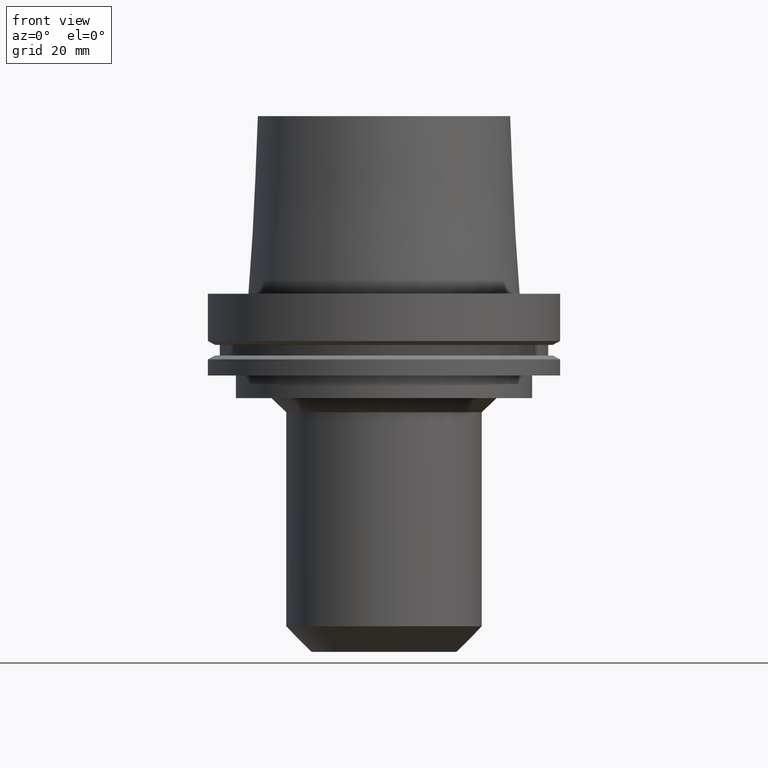
[diagram: clean part render]
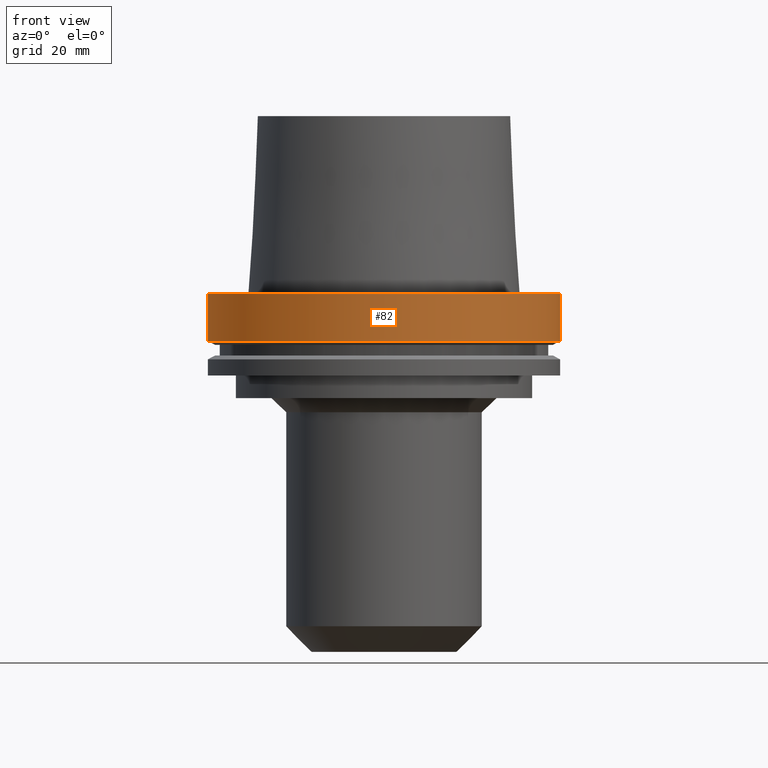
[diagram: same view with one face highlighted and labeled with its STEP entity id]
A machine part, front view. The second image highlights one B-rep face of the part: STEP entity #82.
In plain terms, the highlighted cylindrical surface (bore or boss wall) has radius 62.5 mm, axis along (0, 0, -1).
Its self-contained STEP definition (entity closure, byte-faithful):
#82=ADVANCED_FACE('Unnamed[1]',(#198,#199),#200,.T.);
#133=EDGE_CURVE('Unnamed[1]',#277,#277,#278,.T.);
#137=EDGE_CURVE('Unnamed[1]',#283,#283,#284,.T.);
#198=FACE_BOUND('',#348,.T.);
#199=FACE_BOUND('',#349,.T.);
#200=CYLINDRICAL_SURFACE('',#350,62.5000000000001);
#277=VERTEX_POINT('',#446);
#278=CIRCLE('',#447,62.5);
#283=VERTEX_POINT('',#454);
#284=CIRCLE('',#455,62.5000000000002);
#348=EDGE_LOOP('',(#510));
#349=EDGE_LOOP('',(#511));
#350=AXIS2_PLACEMENT_3D('',#512,#513,#514);
#446=CARTESIAN_POINT('',(1.02578894188644E-015,62.5,-16.7524047358084));
#447=AXIS2_PLACEMENT_3D('',#598,#599,#600);
#454=CARTESIAN_POINT('',(-5.58935713239973E-030,62.5000000000002,8.63540424946709E-014));
#455=AXIS2_PLACEMENT_3D('',#604,#605,#606);
#510=ORIENTED_EDGE('',*,*,#133,.F.);
#511=ORIENTED_EDGE('',*,*,#137,.T.);
#512=CARTESIAN_POINT('',(5.12894470943215E-016,1.02578894188643E-015,-8.37620236790416));
#513=DIRECTION('',(6.12323399573677E-017,1.22464679914735E-016,-1.0));
#514=DIRECTION('',(-1.23259516440783E-032,1.0,1.22464679914735E-016));
#598=CARTESIAN_POINT('',(1.02578894188644E-015,2.05157788377287E-015,-16.7524047358084));
#599=DIRECTION('',(6.12323399573676E-017,1.22464679914735E-016,-1.0));
#600=DIRECTION('',(-1.23259516440783E-032,1.0,1.22464679914735E-016));
#604=CARTESIAN_POINT('',(-5.22098332203606E-030,-1.04419666440721E-029,8.5265128291212E-014));
#605=DIRECTION('',(6.12323399573677E-017,1.22464679914735E-016,-1.0));
#606=DIRECTION('',(-1.23259516440783E-032,1.0,1.22464679914735E-016));